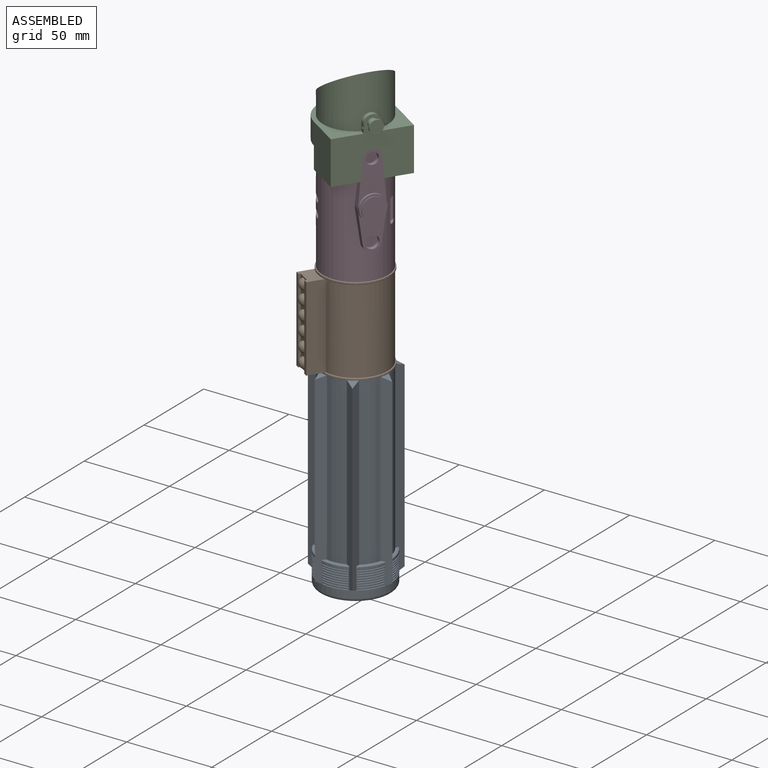
[diagram: assembled view]
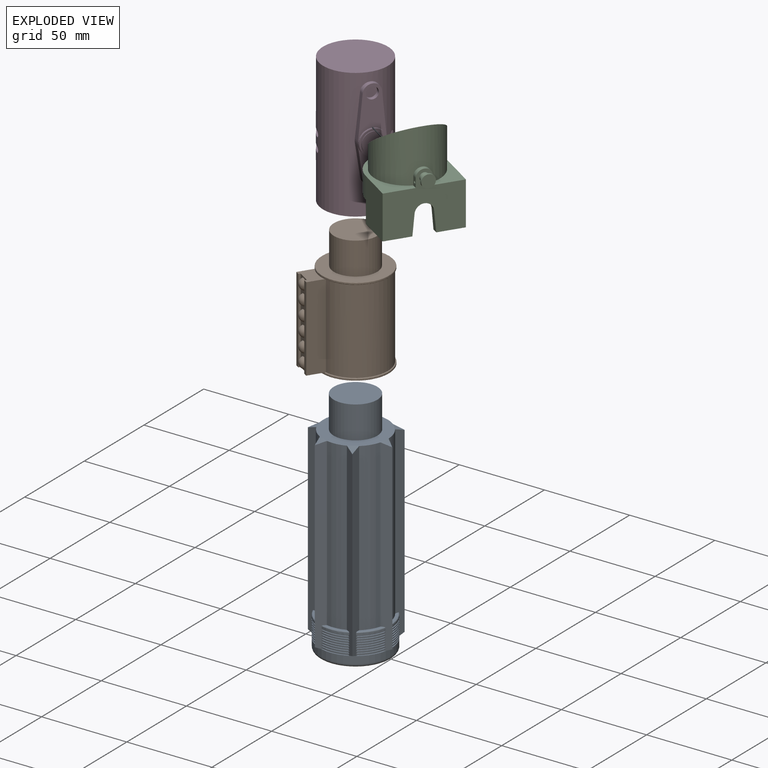
[diagram: exploded view]
GUIDED TOUR — MATED ASSEMBLY (Onshape document af62603db5d436aa22853eb9, AutoMate assembly af62603db5d436aa22853eb9_c4b0870830ca526f281120ed_8d23547acc59a51d15efaa16_default)

This assembly has 4 components, labeled P0..P3 below (a component is one placed occurrence of a part; the same part can appear more than once), held together by 3 mates. A mate is a constraint between two components; its type names the relative motion it leaves free:
  FASTENED — locks the two components together rigidly (no relative motion),
  REVOLUTE — leaves rotation about the listed axis free (a hinge).
Axis/direction vectors are unit vectors and 'through' points are millimeter coordinates, both in the assembly's world frame.

MATES
  1. REVOLUTE "Revolute 1": P1 <-> P3, axis (0.000, 0.000, 1.000) through (-64.92, -8.37, 243.66) mm
  2. FASTENED "Fastened 2": P0 <-> P1, direction (0.000, 0.000, 1.000) through (-64.92, -8.37, 191.59) mm
  3. FASTENED "Fastened 1": P2 <-> P3, direction (-0.839, 0.544, 0.000) through (-48.17, -19.24, 290.65) mm

ASSEMBLY ORDER
  1. P1 — the base component [order heuristic]
  2. P0 [order heuristic]
  3. P3 [order heuristic]
  4. P2 [order heuristic]
Order-tag legend:
  [order heuristic] — this assembly is geometrically interlocked (no collision-free removal order exists), so components are listed in mate-graph order; insertion feasibility is not verified.

Of the 4 components, 1 carries the full construction recipe — the FeatureScript program that regenerates the part's solid from scratch; the rest are supplied as boundary geometry only.
Each toured component is shown spotlighted twice — in the assembled view, then in the exploded view, where a leader line traces a displaced component back to its assembled socket (saturated green if recipe-attached, orange if geometry-only; every other component desaturated gray) — followed by its recipe or geometry summary and the mates that hold it.
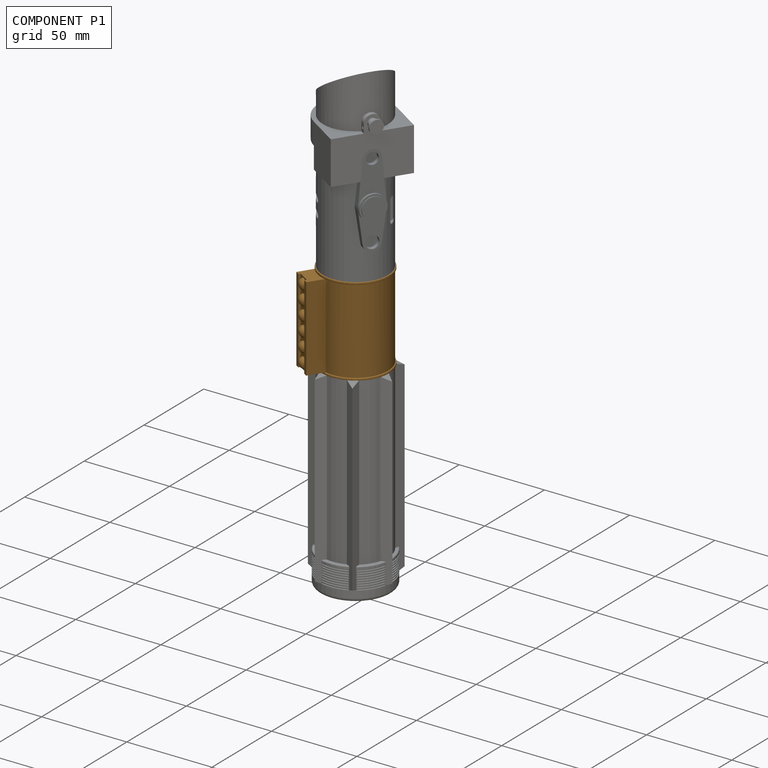
[diagram: component P1 — assembled]
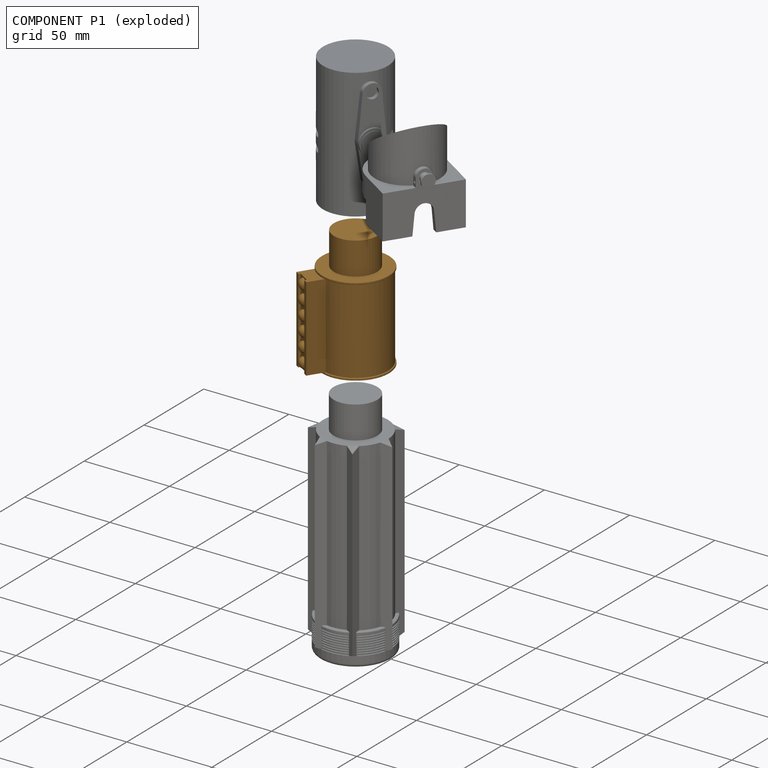
[diagram: component P1 — exploded]
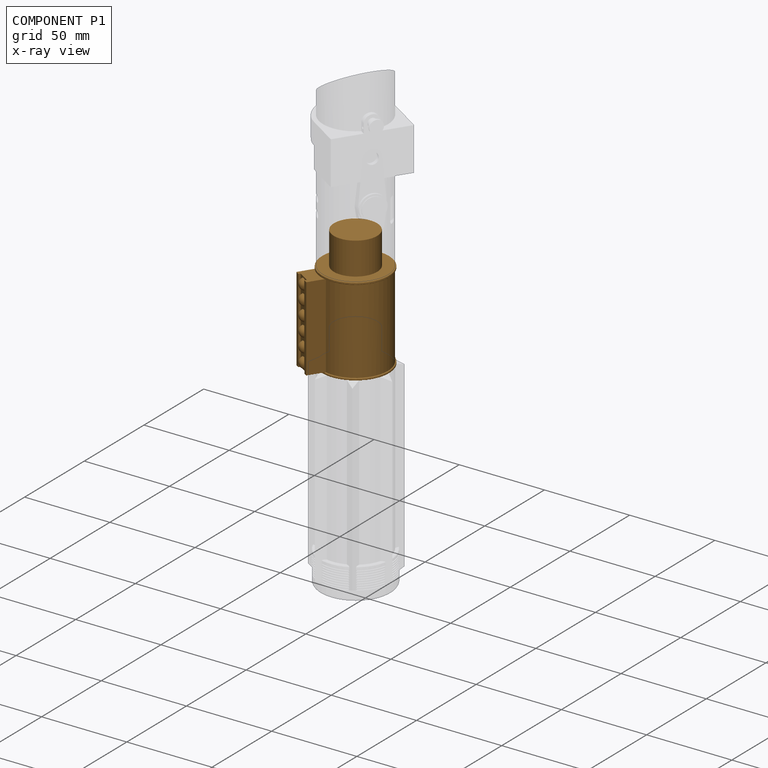
[diagram: component P1 — x-ray view]
COMPONENT P1 — geometry summary (no construction recipe available for this part):
  bounding box: 71.2 x 50.7 x 42.7 mm
  B-rep topology: 1 solid, 36 faces, 168 edges
  volume: 65300 mm^3 (42% of its bounding box)
  symmetry: mirror-symmetric across its x mid-plane
Held by: REVOLUTE mate "Revolute 1" to P3; FASTENED mate "Fastened 2" to P0.
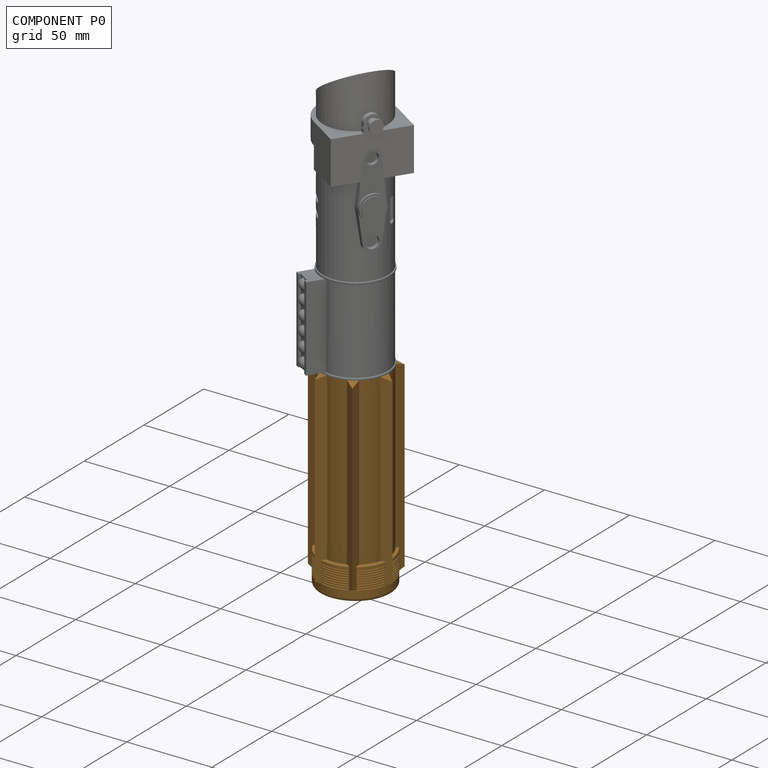
[diagram: component P0 — assembled]
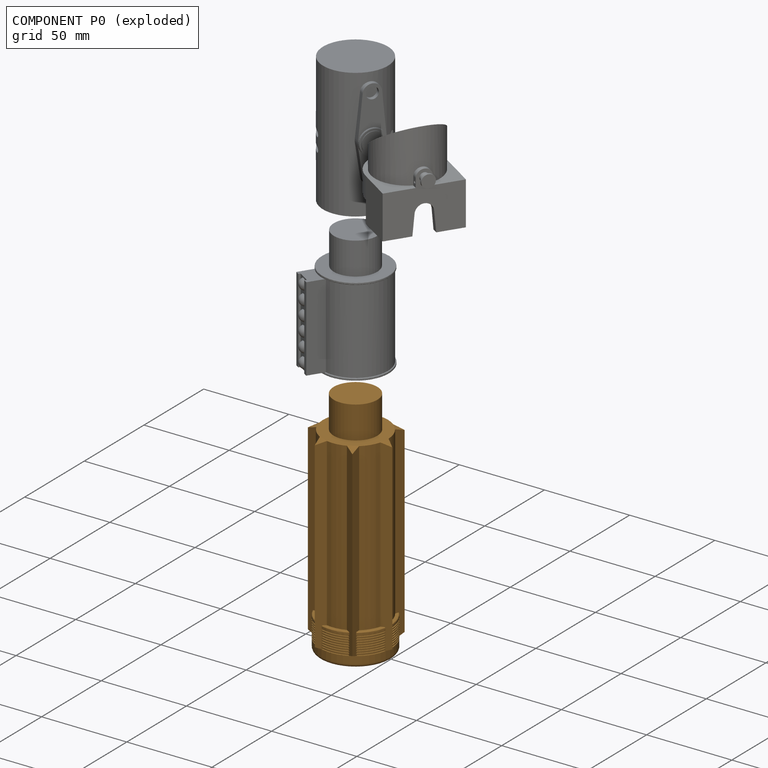
[diagram: component P0 — exploded]
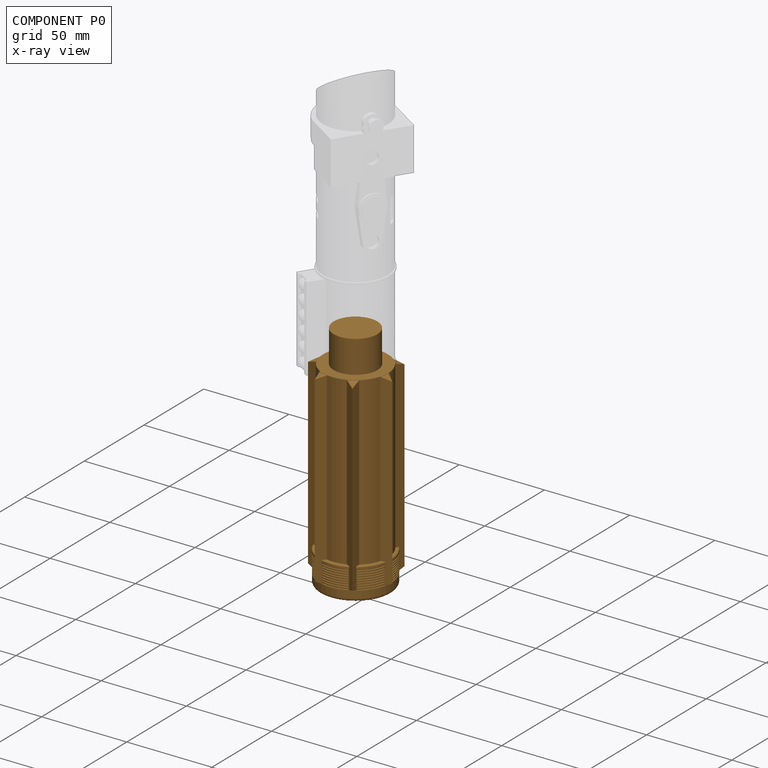
[diagram: component P0 — x-ray view]
COMPONENT P0 — geometry summary (no construction recipe available for this part):
  bounding box: 136.1 x 48.0 x 48.0 mm
  B-rep topology: 1 solid, 299 faces, 1764 edges
  volume: 157318 mm^3 (50% of its bounding box)
  symmetry: mirror-symmetric across its x mid-plane
Held by: FASTENED mate "Fastened 2" to P1.
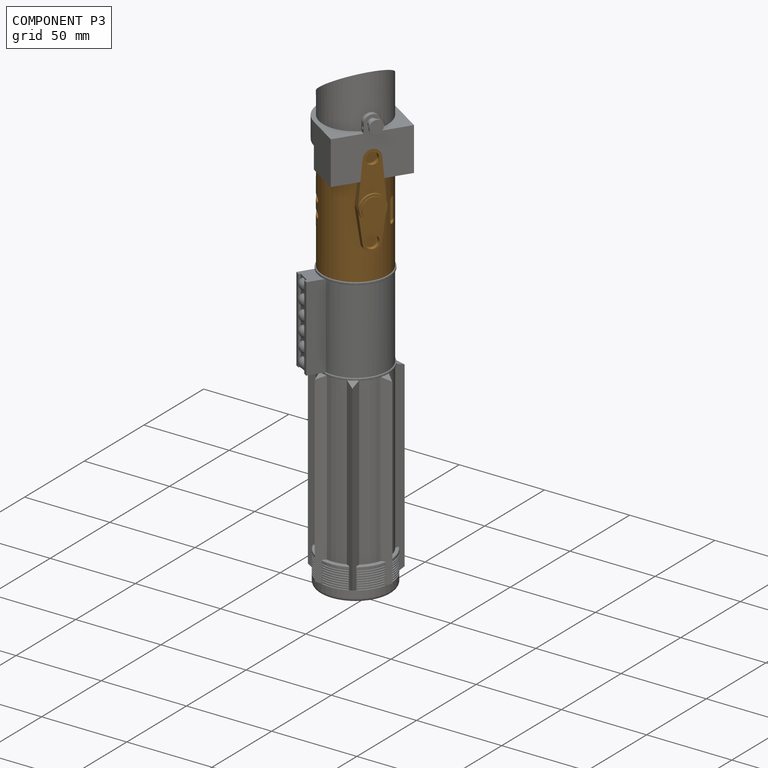
[diagram: component P3 — assembled]
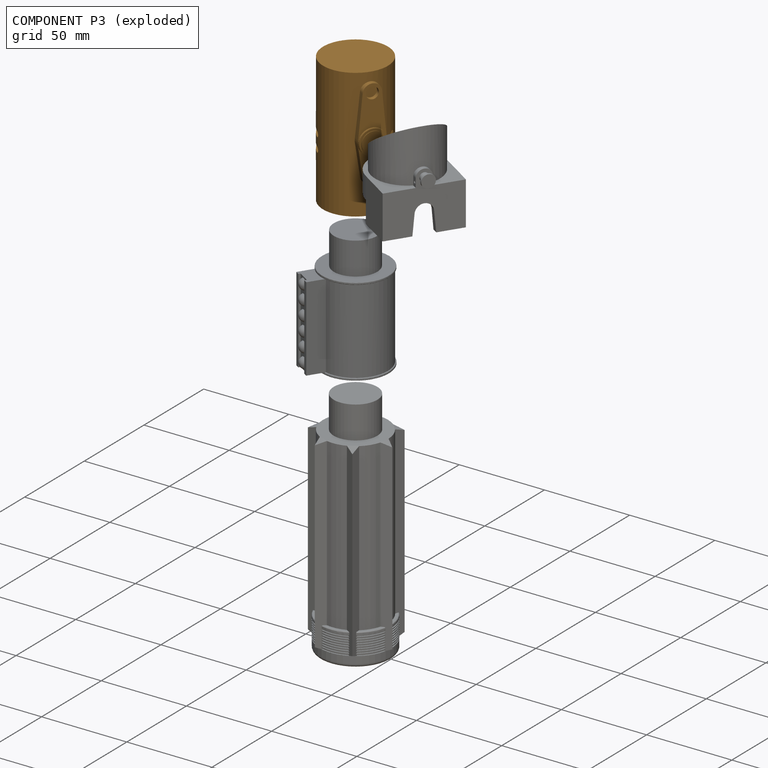
[diagram: component P3 — exploded]
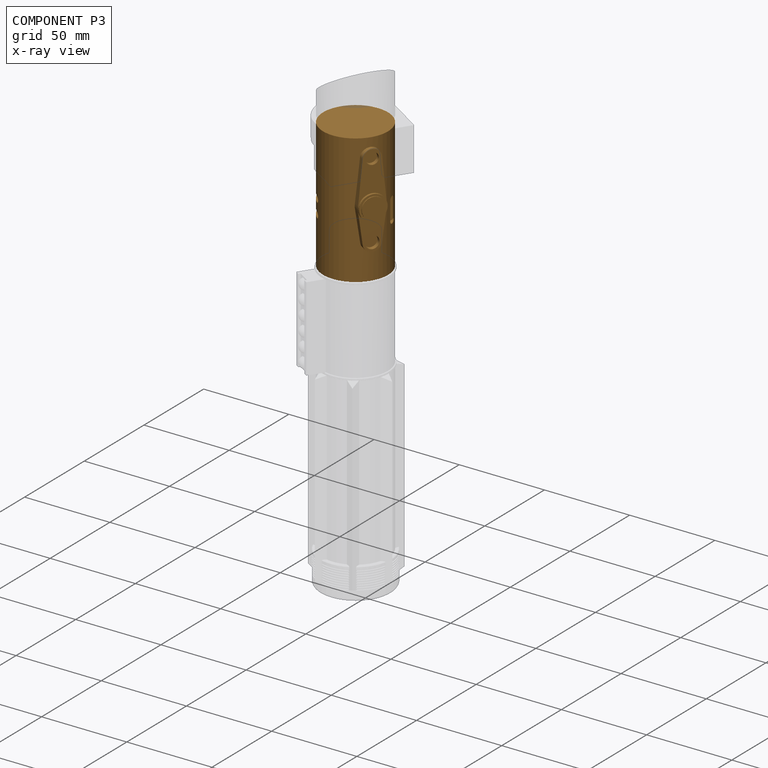
[diagram: component P3 — x-ray view]
COMPONENT P3 — geometry summary (no construction recipe available for this part):
  bounding box: 76.2 x 42.4 x 38.7 mm
  B-rep topology: 1 solid, 75 faces, 348 edges
  volume: 77281 mm^3 (62% of its bounding box)
Held by: REVOLUTE mate "Revolute 1" to P1; FASTENED mate "Fastened 1" to P2.
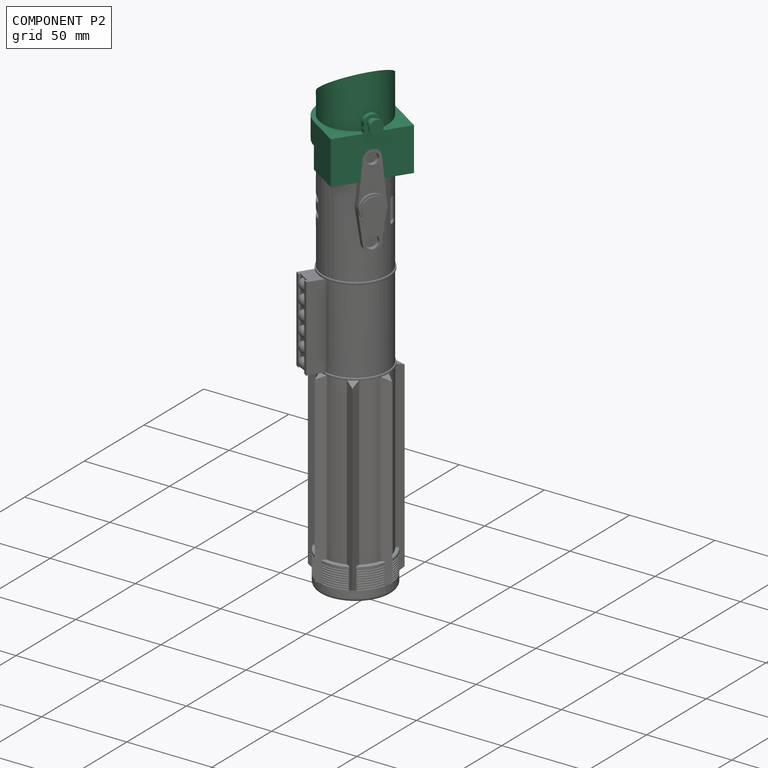
[diagram: component P2 — assembled]
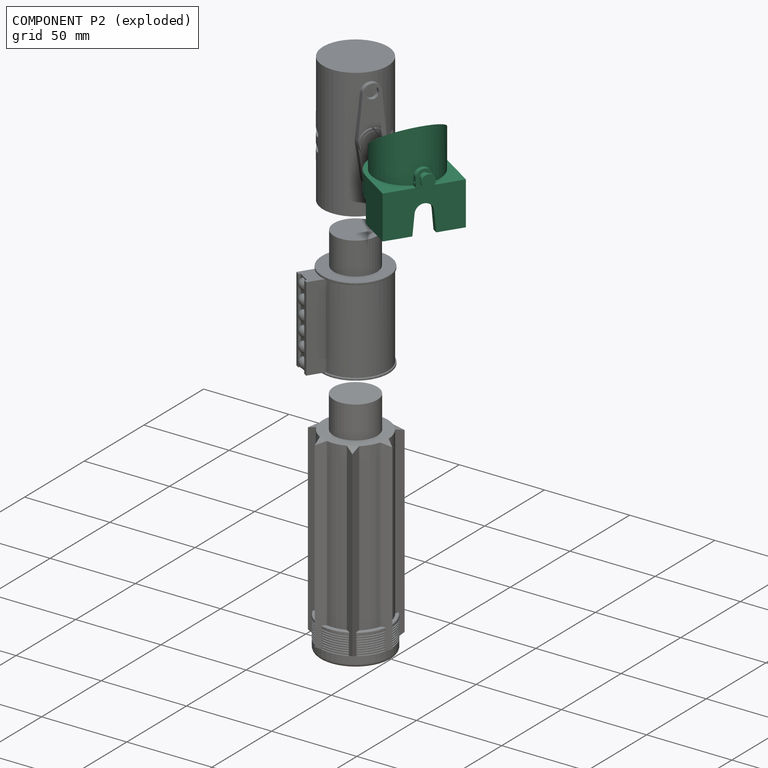
[diagram: component P2 — exploded]
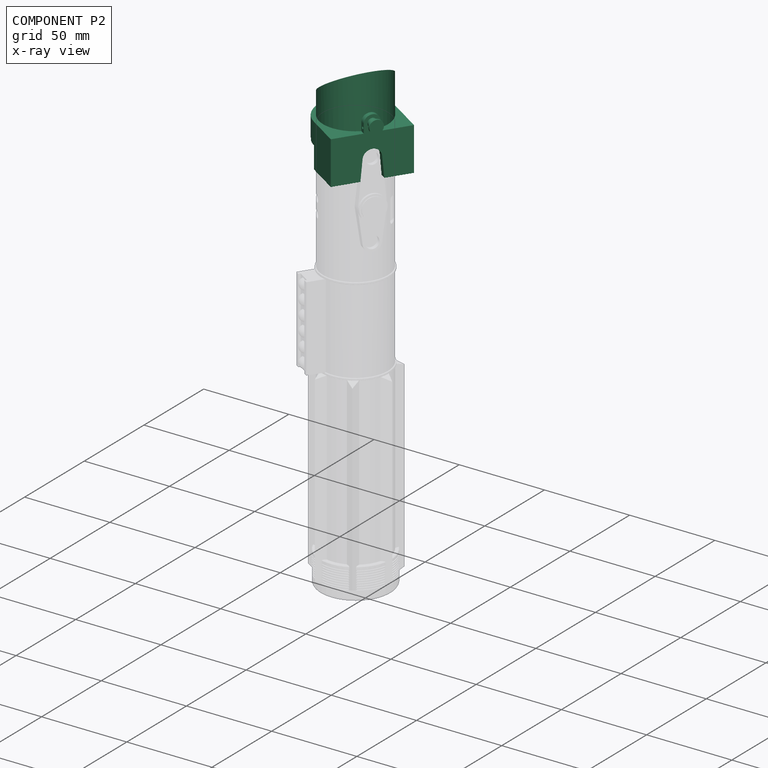
[diagram: component P2 — x-ray view]
COMPONENT P2 — recipe-attached (CADFS 00126538, mesh-verified: the recipe's output STEP matches this component's geometry to below the mesh-comparison resolution (tessellation chordal tolerance ~0.129 mm)).
Held by: FASTENED mate "Fastened 1" to P3.
Construction recipe (FeatureScript — the CAD program that rebuilds this solid; sketch coordinates are in the units given by the * unit suffixes, e.g. mm):

FeatureScript 1511;
import(path : "onshape/std/geometry.fs", version : "1511.0");
import(path : "onshape/std/common.fs", version : "1511.0");
const mm = millimeter;
const VERTEX = EntityType.VERTEX;
const EDGE = EntityType.EDGE;
const FACE = EntityType.FACE;
const BODY = EntityType.BODY;
function v(x, y){return vector(x, y);}
function OD(order){return orderDisambiguation(order);}
function OSD(set){return originalSetDisambiguation(set);}
function TD(topology){return topologyDisambiguation(topology);}
function TDD(query){return trueDependencyDisambiguation(query);}
function sQuery(a, b, c) {return sketchEntityQuery(a, b, c);}

annotation { "Feature Type Name" : "Feature", "Feature Type Description" : "" }
export const myFeature = defineFeature(function(context is Context, id is Id, definition is map)
    precondition{}
    {
        {
            var Q0;
            Q0=qCreatedBy(makeId("Top.planeOp"),FACE);
            var sketch = newSketch(context, id + "F0", { "sketchPlane" : qUnion([Q0])});
            skCircle(sketch, "E0", {"center": v(0, 0) * mm, "radius": 19.05 * mm});
            skCircle(sketch, "E1", {"center": v(0, 0) * mm, "radius": 21.59 * mm});
            skSolve(sketch);
        }
        {
            var Q0;
            Q0 = qSketchRegion(id + "F0", true);
            extrude(context, id + "F1", {"entities" : qUnion([Q0]), "depth" : 12.7 * mm});
        }
        {
            var Q0;
            Q0=makeQuery(id+"F1.opExtrude","CAP_FACE",FACE,{"disambiguationData":[OSD([sQuery(id+"F0.wireOp",EDGE,"E0"),sQuery(id+"F0.wireOp",EDGE,"E1")])],"isStart":false});
            var sketch = newSketch(context, id + "F2", { "sketchPlane" : qUnion([Q0])});
            skCircle(sketch, "E2", {"center": v(0, 0) * mm, "radius": 19.05 * mm});
            skCircle(sketch, "E3", {"center": v(0, 0) * mm, "radius": 16.51 * mm});
            skSolve(sketch);
        }
        {
            var Q0;
            Q0 = qSketchRegion(id + "F2", true);
            extrude(context, id + "F3", {"entities" : qUnion([Q0]), "operationType" : NewBodyOperationType.ADD, "oppositeDirection" : true, "depth" : 3.8 * mm});
        }
        {
            var Q0;
            Q0=makeQuery(id+"F3.boolean.opBoolean","MERGE",FACE,{"derivedFrom":[makeQuery(id+"F1.opExtrude","CAP_FACE",FACE,{"disambiguationData":[OSD([sQuery(id+"F0.wireOp",EDGE,"E0"),sQuery(id+"F0.wireOp",EDGE,"E1")])],"isStart":false}),makeQuery(id+"F3.opExtrude","CAP_FACE",FACE,{"disambiguationData":[OSD([sQuery(id+"F2.wireOp",EDGE,"E2"),sQuery(id+"F2.wireOp",EDGE,"E3")])],"isStart":true})]});
            var sketch = newSketch(context, id + "F4", { "sketchPlane" : qUnion([Q0])});
            skLineSegment(sketch, "E4", {"start": v(0, 19.05) * mm, "end": v(0, 21.59) * mm});
            skLineSegment(sketch, "E5", {"start": v(-21.6, 21.59) * mm, "end": v(0, 21.59) * mm});
            skLineSegment(sketch, "E6", {"start": v(-21.6, 21.59) * mm, "end": v(-21.59, -21.56) * mm});
            skLineSegment(sketch, "E7", {"start": v(-1.12, -21.56) * mm, "end": v(-21.6, -21.56) * mm});
            skLineSegment(sketch, "E8", {"start": v(-1.12, -21.56) * mm, "end": v(-1.12, -19.02) * mm});
            skLineSegment(sketch, "E9", {"start": v(0, 0) * mm, "end": v(-44.5, 0) * mm, "construction": true});
            skPoint(sketch, "E10", {"position": v(-21.59, 0) * mm});
            skArc(sketch, "E11", {"start": v(0, 19.05) * mm, "mid": v(-19.04, 0.56) * mm, "end": v(-1.12, -19.02) * mm});
            skSolve(sketch);
        }
        {
            var Q0;
            Q0 = qSketchRegion(id + "F4", true);
            extrude(context, id + "F5", {"entities" : qUnion([Q0]), "operationType" : NewBodyOperationType.ADD, "oppositeDirection" : true, "depth" : 25.4 * mm});
        }
        {
            var Q0;
            Q0=qCreatedBy(makeId("Right.planeOp"),FACE);
            var sketch = newSketch(context, id + "F6", { "sketchPlane" : qUnion([Q0])});
            skLineSegment(sketch, "E12", {"start": v(7.53, 0) * mm, "end": v(-6.4, 0) * mm});
            skLineSegment(sketch, "E13", {"start": v(0, -58.6) * mm, "end": v(0, 21.6) * mm, "construction": true});
            skLineSegment(sketch, "E14", {"start": v(0, 3.8) * mm, "end": v(0, 3.8) * mm});
            skLineSegment(sketch, "E15", {"start": v(-5.06, -0.79) * mm, "end": v(-6.48, -15.63) * mm});
            skLineSegment(sketch, "E16", {"start": v(-6.42, -18.5) * mm, "end": v(-5.04, -29.02) * mm});
            skPoint(sketch, "E16.endSnap0", {"position": v(0, -33.44) * mm});
            skLineSegment(sketch, "E17", {"start": v(0, -33.44) * mm, "end": v(0, -33.44) * mm});
            skPoint(sketch, "E18.visualSharp", {"position": v(-4.62, 3.81) * mm});
            skArc(sketch, "E18.filletArc", {"start": v(0, 3.81) * mm, "mid": v(-3.42, 2.49) * mm, "end": v(-5.06, -0.79) * mm});
            skPoint(sketch, "E19.visualSharp", {"position": v(-4.45, -33.44) * mm});
            skArc(sketch, "E19.filletArc", {"start": v(-5.04, -29.02) * mm, "mid": v(-3.35, -32.17) * mm, "end": v(0, -33.44) * mm});
            skPoint(sketch, "E20.visualSharp", {"position": v(-6.61, -17.06) * mm});
            skArc(sketch, "E20.filletArc", {"start": v(-6.48, -15.63) * mm, "mid": v(-6.53, -17.06) * mm, "end": v(-6.42, -18.5) * mm});
            skArc(sketch, "E21.MirrorCS", {"start": v(6.48, -15.63) * mm, "mid": v(6.53, -17.06) * mm, "end": v(6.42, -18.5) * mm});
            skArc(sketch, "E22.MirrorCS", {"start": v(0, 3.81) * mm, "mid": v(3.42, 2.49) * mm, "end": v(5.06, -0.79) * mm});
            skArc(sketch, "E23.MirrorCS", {"start": v(5.04, -29.02) * mm, "mid": v(3.35, -32.17) * mm, "end": v(0, -33.44) * mm});
            skLineSegment(sketch, "E24.MirrorCS", {"start": v(6.42, -18.5) * mm, "end": v(5.04, -29.02) * mm});
            skPoint(sketch, "E25.MirrorP", {"position": v(6.61, -17.06) * mm});
            skPoint(sketch, "E26.MirrorP", {"position": v(4.45, -33.44) * mm});
            skLineSegment(sketch, "E27.MirrorCS", {"start": v(5.06, -0.79) * mm, "end": v(6.48, -15.63) * mm});
            skPoint(sketch, "E28.MirrorP", {"position": v(4.62, 3.81) * mm});
            skSolve(sketch);
        }
        {
            var Q0;
            Q0 = qSketchRegion(id + "F6", true);
            extrude(context, id + "F7", {"entities" : qUnion([Q0]), "operationType" : NewBodyOperationType.REMOVE, "oppositeDirection" : true, "depth" : 25.4 * mm});
        }
        {
            var Q0;
            Q0=makeQuery(id+"F5.opExtrude","SWEPT_FACE",FACE,{"disambiguationData":[OSD([sQuery(id+"F4.wireOp",EDGE,"E6")])]});
            var sketch = newSketch(context, id + "F8", { "sketchPlane" : qUnion([Q0])});
            skLineSegment(sketch, "E29", {"start": v(-4.45, 12.7) * mm, "end": v(-4.45, 17.78) * mm});
            skLineSegment(sketch, "E30", {"start": v(4.45, 12.7) * mm, "end": v(4.45, 17.78) * mm});
            skArc(sketch, "E31", {"start": v(4.45, 17.78) * mm, "mid": v(0, 22.23) * mm, "end": v(-4.45, 17.78) * mm});
            skLineSegment(sketch, "E32", {"start": v(0, 0) * mm, "end": v(0, 26.73) * mm, "construction": true});
            skPoint(sketch, "E32.endSnap0", {"position": v(0, 3.81) * mm});
            skLineSegment(sketch, "E33", {"start": v(-4.45, 12.7) * mm, "end": v(4.45, 12.7) * mm});
            skSolve(sketch);
        }
        {
            var Q0;
            Q0 = qSketchRegion(id + "F8", true);
            extrude(context, id + "F9", {"entities" : qUnion([Q0]), "operationType" : NewBodyOperationType.ADD, "oppositeDirection" : true, "depth" : 5.08 * mm});
        }
        {
            var Q0;
            Q0=makeQuery(id+"F5.boolean.opBoolean","MERGE",FACE,{"derivedFrom":[makeQuery(id+"F3.boolean.opBoolean","MERGE",FACE,{"derivedFrom":[makeQuery(id+"F1.opExtrude","CAP_FACE",FACE,{"disambiguationData":[OSD([sQuery(id+"F0.wireOp",EDGE,"E0"),sQuery(id+"F0.wireOp",EDGE,"E1")])],"isStart":false}),makeQuery(id+"F3.opExtrude","CAP_FACE",FACE,{"disambiguationData":[OSD([sQuery(id+"F2.wireOp",EDGE,"E2"),sQuery(id+"F2.wireOp",EDGE,"E3")])],"isStart":true})]}),makeQuery(id+"F5.opExtrude","CAP_FACE",FACE,{"disambiguationData":[OSD([sQuery(id+"F4.wireOp",EDGE,"E4"),sQuery(id+"F4.wireOp",EDGE,"E5"),sQuery(id+"F4.wireOp",EDGE,"E6"),sQuery(id+"F4.wireOp",EDGE,"E7"),sQuery(id+"F4.wireOp",EDGE,"E8"),sQuery(id+"F4.wireOp",EDGE,"E11")])],"isStart":true})]});
            var sketch = newSketch(context, id + "F10", { "sketchPlane" : qUnion([Q0])});
            skCircle(sketch, "E34", {"center": v(0, 0) * mm, "radius": 19.05 * mm});
            skCircle(sketch, "E35", {"center": v(0, 0) * mm, "radius": 16.51 * mm});
            skSolve(sketch);
        }
        {
            var Q0;
            Q0 = qSketchRegion(id + "F10", true);
            extrude(context, id + "F11", {"entities" : qUnion([Q0]), "operationType" : NewBodyOperationType.ADD, "depth" : 31.75 * mm});
        }
        {
            var Q0;
            Q0=makeQuery(id+"F5.opExtrude","SWEPT_FACE",FACE,{"disambiguationData":[OSD([sQuery(id+"F4.wireOp",EDGE,"E7")])]});
            var sketch = newSketch(context, id + "F12", { "sketchPlane" : qUnion([Q0])});
            skLineSegment(sketch, "E36", {"start": v(19.46, 17.18) * mm, "end": v(-20.27, 44.45) * mm});
            skLineSegment(sketch, "E37", {"start": v(-20.27, 44.45) * mm, "end": v(19.46, 44.45) * mm});
            skLineSegment(sketch, "E38", {"start": v(19.46, 44.45) * mm, "end": v(19.46, 17.18) * mm});
            skSolve(sketch);
        }
        {
            var Q0;
            Q0 = qSketchRegion(id + "F12", true);
            extrude(context, id + "F13", {"entities" : qUnion([Q0]), "operationType" : NewBodyOperationType.REMOVE, "endBound" : BoundingType.THROUGH_ALL, "oppositeDirection" : true, "depth" : 25.4 * mm});
        }
        {
            var Q0;
            Q0=makeQuery(id+"F9.opExtrude","SWEPT_FACE",FACE,{"disambiguationData":[OSD([sQuery(id+"F8.wireOp",EDGE,"E30")])]});
            var sketch = newSketch(context, id + "F14", { "sketchPlane" : qUnion([Q0])});
            skCircle(sketch, "E39", {"center": v(-20.06, 15.24) * mm, "radius": 0.76 * mm});
            skPoint(sketch, "E39.centerSnap0", {"position": v(-20.06, 12.7) * mm});
            skPoint(sketch, "E39.centerSnap1", {"position": v(-21.59, 15.24) * mm});
            skSolve(sketch);
        }
        {
            var Q0;
            Q0 = qSketchRegion(id + "F14", true);
            extrude(context, id + "F15", {"entities" : qUnion([Q0]), "operationType" : NewBodyOperationType.REMOVE, "oppositeDirection" : true, "depth" : 25.4 * mm});
        }
        {
            var Q0;
            Q0=makeQuery(id+"F5.boolean.opBoolean","MERGE",FACE,{"derivedFrom":[makeQuery(id+"F3.boolean.opBoolean","MERGE",FACE,{"derivedFrom":[makeQuery(id+"F1.opExtrude","CAP_FACE",FACE,{"disambiguationData":[OSD([sQuery(id+"F0.wireOp",EDGE,"E0"),sQuery(id+"F0.wireOp",EDGE,"E1")])],"isStart":false}),makeQuery(id+"F3.opExtrude","CAP_FACE",FACE,{"disambiguationData":[OSD([sQuery(id+"F2.wireOp",EDGE,"E2"),sQuery(id+"F2.wireOp",EDGE,"E3")])],"isStart":true})]}),makeQuery(id+"F5.opExtrude","CAP_FACE",FACE,{"disambiguationData":[OSD([sQuery(id+"F4.wireOp",EDGE,"E4"),sQuery(id+"F4.wireOp",EDGE,"E5"),sQuery(id+"F4.wireOp",EDGE,"E6"),sQuery(id+"F4.wireOp",EDGE,"E7"),sQuery(id+"F4.wireOp",EDGE,"E8"),sQuery(id+"F4.wireOp",EDGE,"E11")])],"isStart":true})]});
            cPlane(context, id + "F16", {"entities" : qUnion([Q0]), "cplaneType" : CPlaneType.OFFSET, "offset" : 5.08 * mm, "width" : 152.4 * mm, "height" : 152.4 * mm});
        }
        {
            var Q0;
            Q0=qCreatedBy(id+"F16.planeOp",FACE);
            var sketch = newSketch(context, id + "F17", { "sketchPlane" : qUnion([Q0])});
            skLineSegment(sketch, "E40", {"start": v(0, 0) * mm, "end": v(-53.1, 0) * mm, "construction": true});
            skLineSegment(sketch, "E41", {"start": v(-21.59, 0) * mm, "end": v(-21.59, 2.54) * mm});
            skLineSegment(sketch, "E42", {"start": v(-21.59, 2.54) * mm, "end": v(-22.86, 2.54) * mm});
            skLineSegment(sketch, "E43", {"start": v(-27.06, 3.81) * mm, "end": v(-27.06, 0) * mm});
            skLineSegment(sketch, "E44", {"start": v(-27.06, 3.81) * mm, "end": v(-25.79, 3.81) * mm});
            skLineSegment(sketch, "E45", {"start": v(-21.59, 0) * mm, "end": v(-27.06, 0) * mm});
            skArc(sketch, "E46", {"start": v(-25.79, 3.81) * mm, "mid": v(-24.72, 2.27) * mm, "end": v(-22.86, 2.54) * mm});
            skSolve(sketch);
        }
        {
            var Q0;
            Q0 = qSketchRegion(id + "F17", true);
            var Q1;
            Q1=sQuery(id+"F17.wireOp",EDGE,"E40");
            revolve(context, id + "F18", {"operationType" : NewBodyOperationType.ADD, "entities" : qUnion([Q0]), "axis" : qUnion([Q1]), "revolveType" : RevolveType.FULL});
        }
    });
PROVENANCE & LICENSES
Assembly (occurrences, transforms, mates, per-part STEP geometry): AutoMate dataset, Zenodo record 7776208, CC0.
Construction recipes: CADFS (HuggingFace VladPyatov/CADFS, CC-BY-4.0, layered over the ABC dataset), FeatureScript reconstruction programs keyed by ABC model id.
Join: ABC meta listings map ABC model id -> Onshape documentId; within a shared document, parts are matched by geometric signature (bounding-box dims + volume at 0.1% relative tolerance, exact B-rep face/solid counts).
Verification: 1 of this assembly's 4 components carries a recipe attachment, and every attachment is mesh-verified: the CADFS STEP and the AutoMate member STEP were compared as meshes in their shared local frame (symmetric sampled-point-to-mesh distance); worst across the 1 attachment: below the mesh-comparison resolution (tessellation chordal tolerance ~0.129 mm) on a 86 mm part.
Renders: orthographic iso camera (az 35 / el 25); the floor grid conveys scale (grid pitch printed in each image; no ruler). In the exploded view each component is displaced by its stored offset vector: the offsets alone carry the explosion direction (mate normal/axis signs are not orientation cues and do not encode it), and separation distances are assigned per mate-chain, not proportionally to assembly-order depth.
